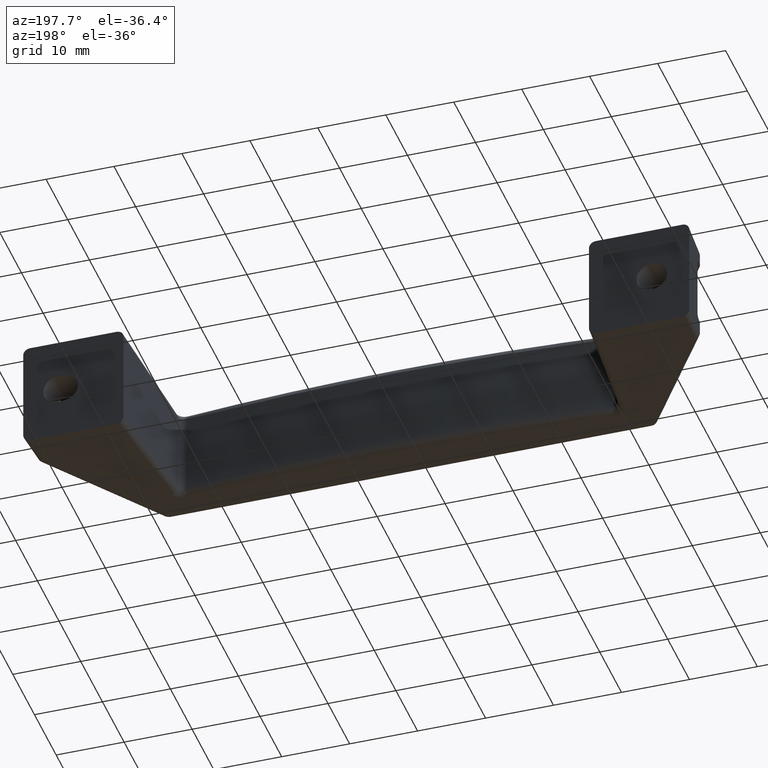
[diagram: clean part render]
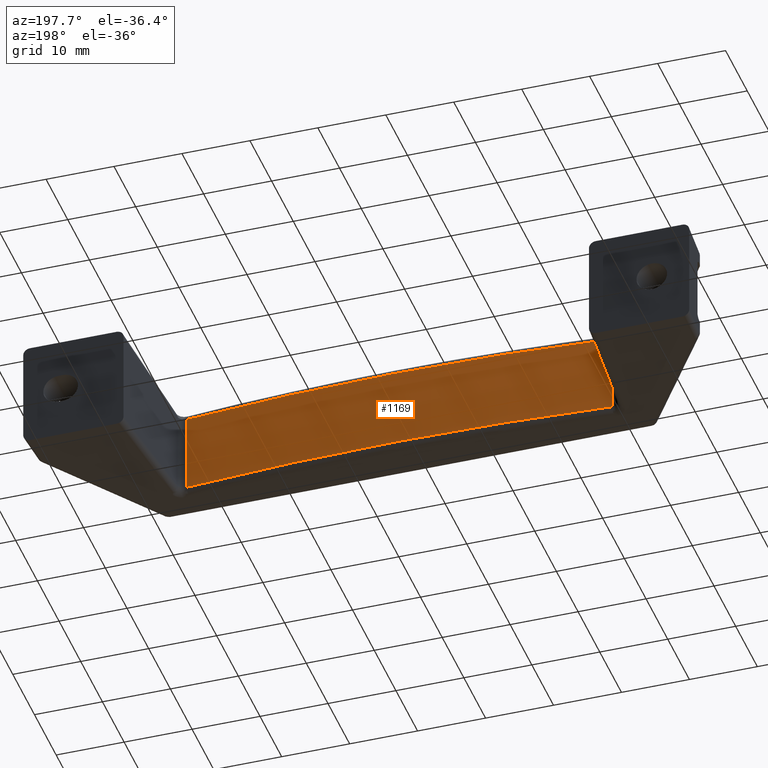
[diagram: same view with one face highlighted and labeled with its STEP entity id]
A machine part, auxiliary view. The second image highlights one B-rep face of the part: STEP entity #1169.
In plain terms, the highlighted face is a freeform B-spline surface patch.
Its self-contained STEP definition (entity closure, byte-faithful):
#1070=CARTESIAN_POINT('',(12.174453842300000,-20.004661307811201,5.898030329351990));
#1071=VERTEX_POINT('',#1070);
#1072=CARTESIAN_POINT('',(12.174453842300000,-20.004661307811201,-5.898030329352320));
#1073=VERTEX_POINT('',#1072);
#1074=CARTESIAN_POINT('',(12.174453842300000,-20.004661307811201,5.898030329351990));
#1075=CARTESIAN_POINT('',(12.174453842300000,-20.004661307811201,-5.898030329352320));
#1076=QUASI_UNIFORM_CURVE('',1,(#1074,#1075),.UNSPECIFIED.,.F.,.U.);
#1077=EDGE_CURVE('',#1071,#1073,#1076,.T.);
#1117=CARTESIAN_POINT('',(77.866382974534048,-20.291298240702019,6.270006939056805));
#1118=CARTESIAN_POINT('',(77.866382974534048,-20.291298240702019,-6.277471233032181));
#1119=CARTESIAN_POINT('',(43.460831267649716,-16.896624606547327,6.270006939056806));
#1120=CARTESIAN_POINT('',(43.460831267649716,-16.896624606547327,-6.277471233032181));
#1121=CARTESIAN_POINT('',(9.056036534701320,-20.298961556527761,6.270006939056805));
#1122=CARTESIAN_POINT('',(9.056036534701320,-20.298961556527761,-6.277471233032181));
#1130=(BOUNDED_SURFACE()B_SPLINE_SURFACE(1,2,((#1117,#1119,#1121),(#1118,#1120,#1122)),.UNSPECIFIED.,.F.,.F.,.U.)B_SPLINE_SURFACE_WITH_KNOTS((2,2),(3,3),(0.0,12.547478172088990),(0.0,68.987104767167565),.UNSPECIFIED.)GEOMETRIC_REPRESENTATION_ITEM()RATIONAL_B_SPLINE_SURFACE(((1.0,0.993994704884717,0.997665906442366),(1.0,0.993994704884717,0.997665906442366)))REPRESENTATION_ITEM('')SURFACE());
#1131=CARTESIAN_POINT('',(74.825546157680094,-20.004661307809599,5.898030329352210));
#1132=VERTEX_POINT('',#1131);
#1133=CARTESIAN_POINT('',(74.825546157680094,-20.004661307809599,-5.898030329352539));
#1134=VERTEX_POINT('',#1133);
#1135=CARTESIAN_POINT('',(74.825546157680094,-20.004661307809599,5.898030329352210));
#1136=CARTESIAN_POINT('',(74.825546157680094,-20.004661307809599,-5.898030329352539));
#1137=QUASI_UNIFORM_CURVE('',1,(#1135,#1136),.UNSPECIFIED.,.F.,.U.);
#1138=EDGE_CURVE('',#1132,#1134,#1137,.T.);
#1139=ORIENTED_EDGE('',*,*,#1138,.T.);
#1140=CARTESIAN_POINT('',(74.825546157680094,-20.004661307809599,-5.898030329352539));
#1141=CARTESIAN_POINT('',(43.499999999988894,-17.189678623993789,-6.045135814842300));
#1142=CARTESIAN_POINT('',(12.174453842297890,-20.004661307811201,-5.898030329352306));
#1150=(BOUNDED_CURVE()B_SPLINE_CURVE(2,(#1140,#1141,#1142),.UNSPECIFIED.,.F.,.U.)CURVE()GEOMETRIC_REPRESENTATION_ITEM()QUASI_UNIFORM_CURVE()RATIONAL_B_SPLINE_CURVE((1.0,0.995986681977676,1.0))REPRESENTATION_ITEM(''));
#1151=EDGE_CURVE('',#1134,#1073,#1150,.T.);
#1152=ORIENTED_EDGE('',*,*,#1151,.T.);
#1153=ORIENTED_EDGE('',*,*,#1077,.F.);
#1154=CARTESIAN_POINT('',(12.174453842300000,-20.004661307811201,5.898030329351990));
#1155=CARTESIAN_POINT('',(43.499999999990990,-17.189678623993956,6.045135814841998));
#1156=CARTESIAN_POINT('',(74.825546157682027,-20.004661307809538,5.898030329352078));
#1164=(BOUNDED_CURVE()B_SPLINE_CURVE(2,(#1154,#1155,#1156),.UNSPECIFIED.,.F.,.U.)CURVE()GEOMETRIC_REPRESENTATION_ITEM()QUASI_UNIFORM_CURVE()RATIONAL_B_SPLINE_CURVE((1.0,0.995986681977715,1.0))REPRESENTATION_ITEM(''));
#1165=EDGE_CURVE('',#1071,#1132,#1164,.T.);
#1166=ORIENTED_EDGE('',*,*,#1165,.T.);
#1167=EDGE_LOOP('',(#1139,#1152,#1153,#1166));
#1168=FACE_OUTER_BOUND('',#1167,.T.);
#1169=ADVANCED_FACE('',(#1168),#1130,.T.);